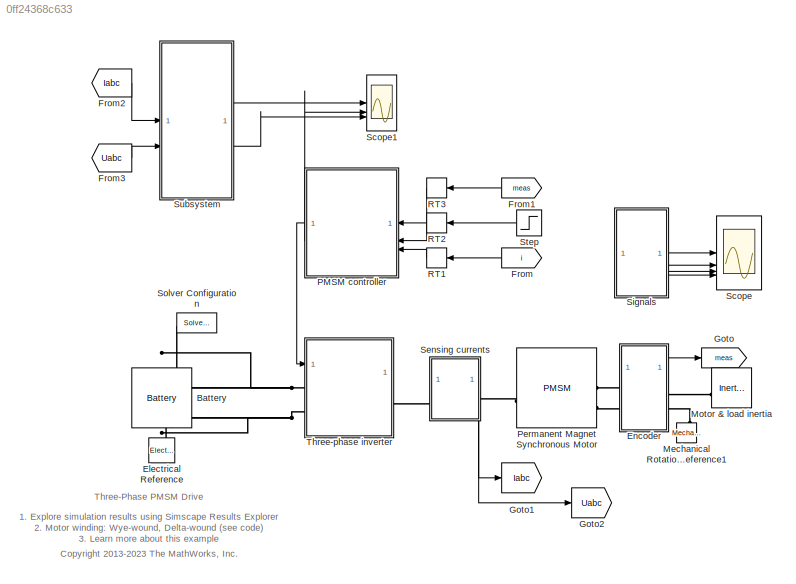
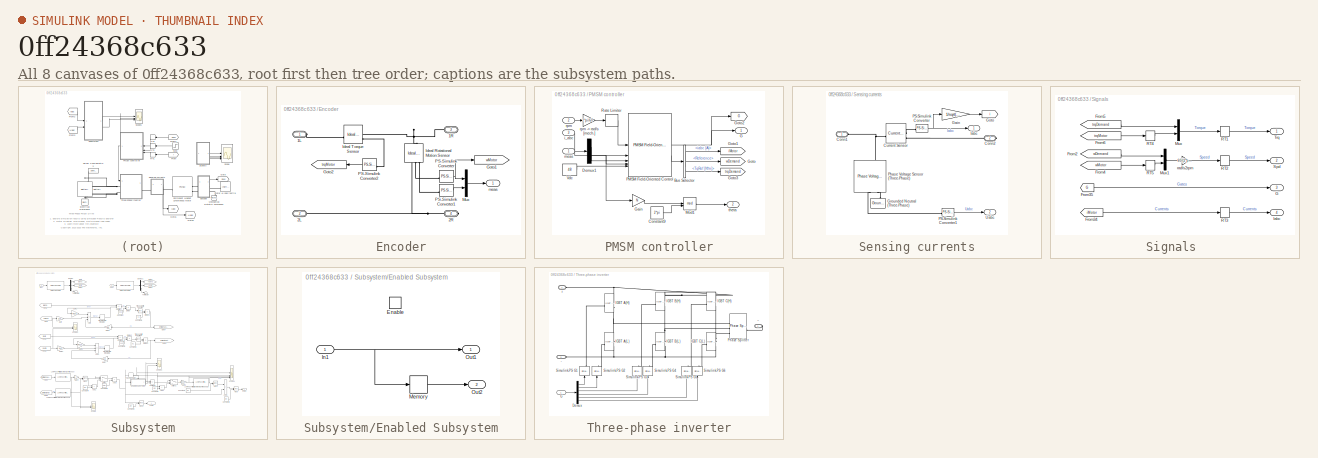
[diagram: thumbnail index - all 8 canvases of the model, root first then tree order]
MODEL slx_0ff24368c633
KIND model
CONFIG AbsTol = 1e-3
CONFIG EnableMultiTasking = on
CONFIG FixedStep = Ts
CONFIG MaxStep = auto
CONFIG MinStep = auto
CONFIG PreLoadFcn = % Control parameters\nTs = 2e-6;   % Fundamental sample time\nfsw = 2e3;   % Switching frequency (Hz)\nfc = fsw*10; % Control loop frequency (Hz)\nTsc = 1/fc;  % Control loop sample time\n\n% PMSM parameters \nPM = 0.03; % Permanent magnet flux linkage\nLd = 2e-4;  % d-axis inductance\nLq = 2e-4;  % q-axis inductance\nL0 = 2e-4;  % 0-axis inductance\nRs = 0.013; % Stator resistance\nN = 6; % Number of pole pa...<+387ch>
CONFIG RelTol = 1e-3
CONFIG SampleTimeConstraint = Unconstrained
CONFIG SolverName = FixedStepAuto
CONFIG StartTime = 0.0
CONFIG StopTime = 1
BLOCK [Reference] Battery  REF=batteryecm_lib/Battery
  NameLocation = right
  SourceBlock = batteryecm_lib/Battery
  SourceType = Battery
BLOCK [Reference] Electrical Reference  REF=fl_lib/Electrical/Electrical Elements/Electrical Reference
  NameLocation = right
  SourceBlock = fl_lib/Electrical/Electrical Elements/Electrical Reference
  SourceType = Electrical Reference
BLOCK [SubSystem] Encoder
BLOCK [PMIOPort] Encoder/1L
  Side = Left
BLOCK [PMIOPort] Encoder/1R
  Port = 3
  Side = Right
BLOCK [PMIOPort] Encoder/2L
  Port = 2
  Side = Left
BLOCK [PMIOPort] Encoder/2R
  Port = 4
  Side = Right
BLOCK [Goto] Encoder/Goto1
  GotoTag = wMotor
  NameLocation = top
  TagVisibility = global
BLOCK [Goto] Encoder/Goto2
  GotoTag = trqMotor
  TagVisibility = global
BLOCK [Reference] Encoder/Ideal Rotational Motion Sensor  REF=fl_lib/Mechanical/Mechanical Sensors/Ideal Rotational
Motion Sensor
  NameLocation = right
  SourceBlock = fl_lib/Mechanical/Mechanical Sensors/Ideal Rotational\nMotion Sensor
  SourceType = Ideal Rotational\nMotion Sensor
BLOCK [Reference] Encoder/Ideal Torque Sensor  REF=fl_lib/Mechanical/Mechanical Sensors/Ideal Torque Sensor
  SourceBlock = fl_lib/Mechanical/Mechanical Sensors/Ideal Torque Sensor
  SourceType = Ideal Torque Sensor
BLOCK [Mux] Encoder/Mux
  DisplayOption = bar
  Inputs = 2
BLOCK [Reference] Encoder/PS-Simulink Converter  REF=nesl_utility/PS-Simulink
Converter
  SourceBlock = nesl_utility/PS-Simulink\nConverter
  SourceType = PS-Simulink\nConverter
BLOCK [Reference] Encoder/PS-Simulink Converter1  REF=nesl_utility/PS-Simulink
Converter
  SourceBlock = nesl_utility/PS-Simulink\nConverter
  SourceType = PS-Simulink\nConverter
BLOCK [Reference] Encoder/PS-Simulink Converter2  REF=nesl_utility/PS-Simulink
Converter
  NameLocation = top
  SourceBlock = nesl_utility/PS-Simulink\nConverter
  SourceType = PS-Simulink\nConverter
BLOCK [Outport] Encoder/meas
  VectorParamsAs1DForOutWhenUnconnected = off
BLOCK [From] From
  GotoTag = i
  TagVisibility = global
BLOCK [From] From1
  GotoTag = meas
  TagVisibility = global
BLOCK [From] From2
  GotoTag = Iabc
BLOCK [From] From3
  GotoTag = Uabc
BLOCK [Goto] Goto
  GotoTag = meas
  TagVisibility = global
BLOCK [Goto] Goto1
  GotoTag = Iabc
BLOCK [Goto] Goto2
  GotoTag = Uabc
BLOCK [Reference] Mechanical Rotational Reference1  REF=fl_lib/Mechanical/Rotational Elements/Mechanical
Rotational Reference
  NameLocation = right
  SourceBlock = fl_lib/Mechanical/Rotational Elements/Mechanical\nRotational Reference
  SourceType = Mechanical\nRotational Reference
BLOCK [Reference] Motor & load inertia  REF=fl_lib/Mechanical/Rotational Elements/Inertia
  SourceBlock = fl_lib/Mechanical/Rotational Elements/Inertia
  SourceType = Inertia
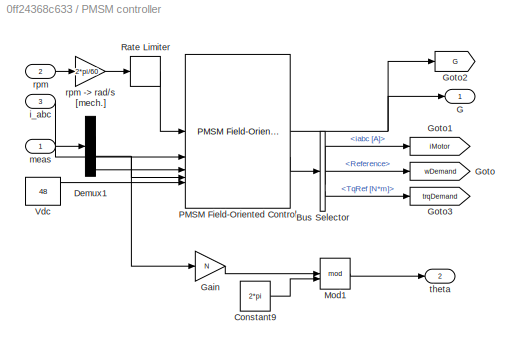
BLOCK [SubSystem] PMSM controller
BLOCK [BusSelector] PMSM controller/Bus Selector
  OutputSignals = iabc [A],Reference,TqRef [N*m]
BLOCK [Constant] PMSM controller/Constant9
  Value = 2*pi
BLOCK [Demux] PMSM controller/Demux1
  Outputs = 2
BLOCK [Outport] PMSM controller/G
  VectorParamsAs1DForOutWhenUnconnected = off
BLOCK [Gain] PMSM controller/Gain
  Gain = N
BLOCK [Goto] PMSM controller/Goto
  GotoTag = wDemand
  NameLocation = top
  TagVisibility = global
BLOCK [Goto] PMSM controller/Goto1
  GotoTag = iMotor
  NameLocation = top
  TagVisibility = global
BLOCK [Goto] PMSM controller/Goto2
  GotoTag = G
  TagVisibility = global
BLOCK [Goto] PMSM controller/Goto3
  GotoTag = trqDemand
  NameLocation = top
  TagVisibility = global
BLOCK [Math] PMSM controller/Mod1
  Operator = mod
BLOCK [Reference] PMSM controller/PMSM Field-Oriented Control  REF=eePmsmFieldOrientedControl/PMSM Field-Oriented
Control
  SourceBlock = eePmsmFieldOrientedControl/PMSM Field-Oriented\nControl
  SourceType = PMSM Field-Oriented Control
BLOCK [RateLimiter] PMSM controller/Rate Limiter
  FallingSlewLimit = -Tmax/J
  NameLocation = top
  RisingSlewLimit = Tmax/J
  SampleTimeMode = inherited
BLOCK [Constant] PMSM controller/Vdc
  SampleTime = Tsc
  Value = 48
BLOCK [Inport] PMSM controller/i_abc
  Port = 3
BLOCK [Inport] PMSM controller/meas
BLOCK [Inport] PMSM controller/rpm
  Port = 2
BLOCK [Gain] PMSM controller/rpm -> rad//s [mech.]
  Gain = 2*pi/60
  NameLocation = top
BLOCK [Outport] PMSM controller/theta
  Port = 2
  VectorParamsAs1DForOutWhenUnconnected = off
BLOCK [Reference] Permanent Magnet Synchronous Motor  REF=ee_lib/Electromechanical/Permanent Magnet/PMSM
  SourceBlock = ee_lib/Electromechanical/Permanent Magnet/PMSM
  SourceType = PMSM
BLOCK [RateTransition] RT1
  OutPortSampleTime = Tsc
BLOCK [RateTransition] RT2
  OutPortSampleTime = Tsc
BLOCK [RateTransition] RT3
  OutPortSampleTime = Tsc
BLOCK [Scope] Scope
  Floating = off
  NumInputPorts = 4
  ScopeSpecificationString = Simulink.scopes.TimeScopeBlockCfg('CurrentConfiguration', extmgr.ConfigurationSet(extmgr.Configuration('Core','General UI',true),extmgr.Configuration('Core','Source UI',true),extmgr.Configuration('Sources','WiredSimulink',true),extmgr.Configuration('Visuals','Time Domain',true,'SerializedDisplays',{struct('MinYLimReal','-4.67392','MaxYLimReal','37.28798','YLabelReal','','MinYLimMag','0.00000','Max...<+3988ch>
BLOCK [Scope] Scope1
  Floating = off
  NumInputPorts = 3
  ScopeSpecificationString = Simulink.scopes.TimeScopeBlockCfg('CurrentConfiguration', extmgr.ConfigurationSet(extmgr.Configuration('Core','General UI',true),extmgr.Configuration('Core','Source UI',true),extmgr.Configuration('Sources','WiredSimulink',true,'DataLoggingVariableName','ScopeData1'),extmgr.Configuration('Visuals','Time Domain',true,'SerializedDisplays',{struct('MinYLimReal','-0.7854','MaxYLimReal','7.06858','YLabe...<+1704ch>
BLOCK [SubSystem] Sensing currents
  PortSchema = {"entries":[{"content":{"sides":[{"content":{"connectorIds":["LConn1"]},"type":"ConnectorPlacement.EquallySpacedRectSide","uuid":"aa9d4f57-d480-4f23-a03e-aff27c78cb04"},{"content":{"connectorIds":["RConn1"],"side":"RIGHT"},"type":"ConnectorPlacement.EquallySpacedRectSide","uuid":"467c90f0-1554-4a75-86a4-c985cf5425a8"},{"content":{"side":"TOP"},"type":"ConnectorPlacement.EquallySpacedRectSide","uui...<+384ch>
BLOCK [PMIOPort] Sensing currents/Conn1
  Side = Left
BLOCK [PMIOPort] Sensing currents/Conn2
  Port = 2
  Side = Right
BLOCK [Reference] Sensing currents/Current Sensor  REF=ee_lib/Sensors &
Transducers/Current Sensor
(Three-Phase)
  SourceBlock = ee_lib/Sensors &\nTransducers/Current Sensor\n(Three-Phase)
  SourceType = Current Sensor\n(Three-Phase)
BLOCK [Gain] Sensing currents/Gain
  Commented = through
  Gain = 1/sqrt(3)
BLOCK [Goto] Sensing currents/Goto
  GotoTag = i
  TagVisibility = global
BLOCK [Reference] Sensing currents/Grounded Neutral (Three-Phase)  REF=ee_lib/Connectors &
References/Grounded Neutral
(Three-Phase)
  NameLocation = right
  SourceBlock = ee_lib/Connectors &\nReferences/Grounded Neutral\n(Three-Phase)
  SourceType = Grounded Neutral\n(Three-Phase)
BLOCK [Outport] Sensing currents/Iabc
BLOCK [Reference] Sensing currents/PS-Simulink Converter  REF=nesl_utility/PS-Simulink
Converter
  SourceBlock = nesl_utility/PS-Simulink\nConverter
  SourceType = PS-Simulink\nConverter
BLOCK [Reference] Sensing currents/PS-Simulink Converter1  REF=nesl_utility/PS-Simulink
Converter
  SourceBlock = nesl_utility/PS-Simulink\nConverter
  SourceType = PS-Simulink\nConverter
BLOCK [Reference] Sensing currents/Phase Voltage Sensor (Three-Phase)  REF=ee_lib/Sensors &
Transducers/Phase Voltage Sensor
(Three-Phase)
  NameLocation = right
  SourceBlock = ee_lib/Sensors &\nTransducers/Phase Voltage Sensor\n(Three-Phase)
  SourceType = Phase Voltage Sensor\n(Three-Phase)
BLOCK [Outport] Sensing currents/Uabc
  Port = 2
BLOCK [SubSystem] Signals 
BLOCK [From] Signals /From2
  GotoTag = wDemand
  TagVisibility = global
BLOCK [From] Signals /From34
  GotoTag = iMotor
  TagVisibility = global
BLOCK [From] Signals /From35
  GotoTag = G
  TagVisibility = global
BLOCK [From] Signals /From4
  GotoTag = wMotor
  TagVisibility = global
BLOCK [From] Signals /From5
  GotoTag = trqDemand
  TagVisibility = global
BLOCK [From] Signals /From6
  GotoTag = trqMotor
  TagVisibility = global
BLOCK [Outport] Signals /G
  Port = 3
  VectorParamsAs1DForOutWhenUnconnected = off
BLOCK [Outport] Signals /Iabc
  Port = 4
  VectorParamsAs1DForOutWhenUnconnected = off
BLOCK [Mux] Signals /Mux
  DisplayOption = bar
  Inputs = 2
BLOCK [Mux] Signals /Mux1
  DisplayOption = bar
  Inputs = 2
BLOCK [RateTransition] Signals /RT1
  OutPortSampleTime = Ts
BLOCK [RateTransition] Signals /RT2
  OutPortSampleTime = Ts
BLOCK [RateTransition] Signals /RT3
  OutPortSampleTime = Ts
BLOCK [RateTransition] Signals /RT4
  OutPortSampleTime = Tsc
BLOCK [RateTransition] Signals /RT5
  OutPortSampleTime = Tsc
BLOCK [Outport] Signals /Spd
  Port = 2
  VectorParamsAs1DForOutWhenUnconnected = off
BLOCK [Outport] Signals /Trq
  VectorParamsAs1DForOutWhenUnconnected = off
BLOCK [Gain] Signals /rad//s2rpm
  Gain = 60/(2*pi)
BLOCK [Reference] Solver Configuration  REF=nesl_utility/Solver
Configuration
  SourceBlock = nesl_utility/Solver\nConfiguration
  SourceType = Solver\nConfiguration
BLOCK [Step] Step
  After = 800
  SampleTime = 0
  Time = 0.05
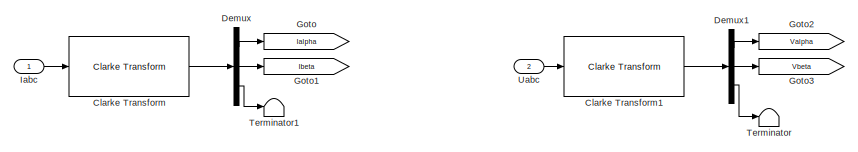
[diagram: Subsystem - part 1/2, top left region]
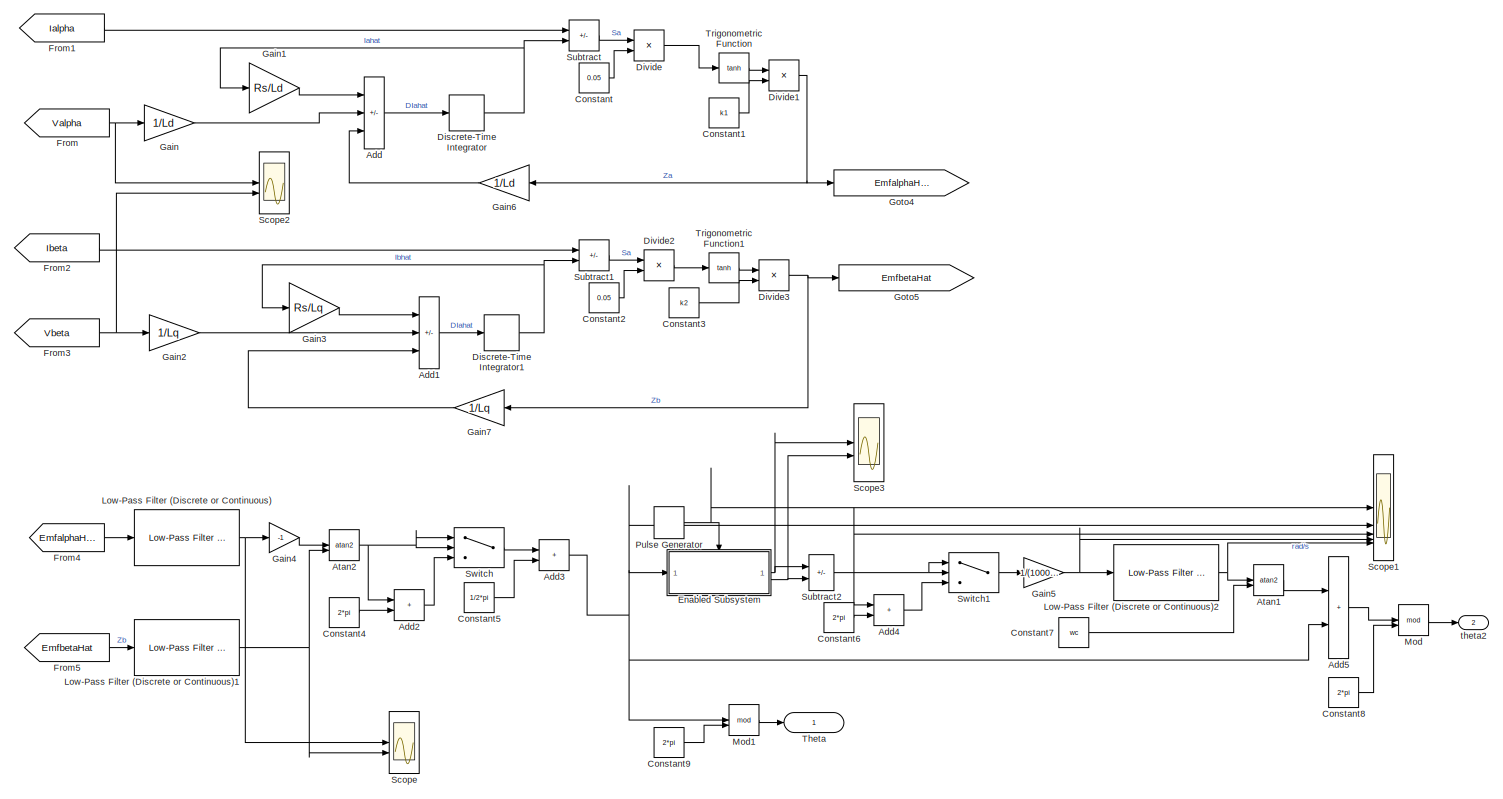
[diagram: Subsystem - part 2/2, most of the canvas]
BLOCK [SubSystem] Subsystem
BLOCK [Sum] Subsystem/Add
  IconShape = rectangular
  Inputs = -+-
BLOCK [Sum] Subsystem/Add1
  IconShape = rectangular
  Inputs = -+-
BLOCK [Sum] Subsystem/Add2
  IconShape = rectangular
BLOCK [Sum] Subsystem/Add3
  IconShape = rectangular
BLOCK [Sum] Subsystem/Add4
  IconShape = rectangular
BLOCK [Sum] Subsystem/Add5
  IconShape = rectangular
BLOCK [Trigonometry] Subsystem/Atan1
  Operator = atan2
BLOCK [Trigonometry] Subsystem/Atan2
  Operator = atan2
BLOCK [Reference] Subsystem/Clarke Transform  REF=mcbcontrolslib/Clarke Transform
  LibrarySourceBlock = mcbhdllib/Controls/Math Transforms/Clarke Transform
  SourceBlock = mcbcontrolslib/Clarke Transform
  SourceType = Clarke Transform
BLOCK [Reference] Subsystem/Clarke Transform1  REF=mcbcontrolslib/Clarke Transform
  LibrarySourceBlock = mcbhdllib/Controls/Math Transforms/Clarke Transform
  SourceBlock = mcbcontrolslib/Clarke Transform
  SourceType = Clarke Transform
BLOCK [Constant] Subsystem/Constant
  Value = 0.05
BLOCK [Constant] Subsystem/Constant1
  Value = k1
BLOCK [Constant] Subsystem/Constant2
  Value = 0.05
BLOCK [Constant] Subsystem/Constant3
  Value = k2
BLOCK [Constant] Subsystem/Constant4
  Value = 2*pi
BLOCK [Constant] Subsystem/Constant5
  Value = 1/2*pi
BLOCK [Constant] Subsystem/Constant6
  Value = 2*pi
BLOCK [Constant] Subsystem/Constant7
  Value = wc
BLOCK [Constant] Subsystem/Constant8
  Value = 2*pi
BLOCK [Constant] Subsystem/Constant9
  Value = 2*pi
BLOCK [Demux] Subsystem/Demux
  Outputs = 3
BLOCK [Demux] Subsystem/Demux1
  Outputs = 3
BLOCK [DiscreteIntegrator] Subsystem/Discrete-Time Integrator
  ICPrevOutput = DiscIntNeverNeededParam
  ICPrevScaledInput = DiscIntNeverNeededParam
  InitialConditionSetting = Auto
  SampleTime = Ts
BLOCK [DiscreteIntegrator] Subsystem/Discrete-Time Integrator1
  ICPrevOutput = DiscIntNeverNeededParam
  ICPrevScaledInput = DiscIntNeverNeededParam
  InitialConditionSetting = Auto
  SampleTime = Ts
BLOCK [Product] Subsystem/Divide
  Inputs = */
BLOCK [Product] Subsystem/Divide1
  Inputs = **
BLOCK [Product] Subsystem/Divide2
  Inputs = */
BLOCK [Product] Subsystem/Divide3
  Inputs = **
BLOCK [SubSystem] Subsystem/Enabled Subsystem
  TreatAsAtomicUnit = on
BLOCK [EnablePort] Subsystem/Enabled Subsystem/Enable
BLOCK [Inport] Subsystem/Enabled Subsystem/In1
BLOCK [Memory] Subsystem/Enabled Subsystem/Memory
BLOCK [Outport] Subsystem/Enabled Subsystem/Out1
BLOCK [Outport] Subsystem/Enabled Subsystem/Out2
  Port = 2
BLOCK [From] Subsystem/From
  GotoTag = Valpha
BLOCK [From] Subsystem/From1
  GotoTag = Ialpha
BLOCK [From] Subsystem/From2
  GotoTag = Ibeta
BLOCK [From] Subsystem/From3
  GotoTag = Vbeta
BLOCK [From] Subsystem/From4
  GotoTag = EmfalphaHat
BLOCK [From] Subsystem/From5
  GotoTag = EmfbetaHat
BLOCK [Gain] Subsystem/Gain
  Gain = 1/Ld
BLOCK [Gain] Subsystem/Gain1
  Gain = Rs/Ld
BLOCK [Gain] Subsystem/Gain2
  Gain = 1/Lq
BLOCK [Gain] Subsystem/Gain3
  Gain = Rs/Lq
BLOCK [Gain] Subsystem/Gain4
  Gain = -1
BLOCK [Gain] Subsystem/Gain5
  Gain = 1/(1000*Ts)
BLOCK [Gain] Subsystem/Gain6
  Gain = 1/Ld
BLOCK [Gain] Subsystem/Gain7
  Gain = 1/Lq
BLOCK [Goto] Subsystem/Goto
  GotoTag = Ialpha
BLOCK [Goto] Subsystem/Goto1
  GotoTag = Ibeta
BLOCK [Goto] Subsystem/Goto2
  GotoTag = Valpha
BLOCK [Goto] Subsystem/Goto3
  GotoTag = Vbeta
BLOCK [Goto] Subsystem/Goto4
  GotoTag = EmfalphaHat
BLOCK [Goto] Subsystem/Goto5
  GotoTag = EmfbetaHat
BLOCK [Inport] Subsystem/Iabc
BLOCK [Reference] Subsystem/Low-Pass Filter (Discrete or Continuous)  REF=eeGeneralControl/Low-Pass Filter
(Discrete or Continuous)
  LibrarySourceBlock = ee_sl_lib/General Control/Low-Pass Filter\n(Discrete or Continuous)
  SourceBlock = eeGeneralControl/Low-Pass Filter\n(Discrete or Continuous)
  SourceType = Low-Pass Filter (Discrete or Continuous)
BLOCK [Reference] Subsystem/Low-Pass Filter (Discrete or Continuous)1  REF=eeGeneralControl/Low-Pass Filter
(Discrete or Continuous)
  LibrarySourceBlock = ee_sl_lib/General Control/Low-Pass Filter\n(Discrete or Continuous)
  SourceBlock = eeGeneralControl/Low-Pass Filter\n(Discrete or Continuous)
  SourceType = Low-Pass Filter (Discrete or Continuous)
BLOCK [Reference] Subsystem/Low-Pass Filter (Discrete or Continuous)2  REF=eeGeneralControl/Low-Pass Filter
(Discrete or Continuous)
  LibrarySourceBlock = ee_sl_lib/General Control/Low-Pass Filter\n(Discrete or Continuous)
  SourceBlock = eeGeneralControl/Low-Pass Filter\n(Discrete or Continuous)
  SourceType = Low-Pass Filter (Discrete or Continuous)
BLOCK [Math] Subsystem/Mod
  Operator = mod
BLOCK [Math] Subsystem/Mod1
  Operator = mod
BLOCK [DiscretePulseGenerator] Subsystem/Pulse Generator
  Period = Ts*1000
  PulseType = Time based
  PulseWidth = 50
BLOCK [Scope] Subsystem/Scope
  Floating = off
  NumInputPorts = 2
  ScopeSpecificationString = Simulink.scopes.TimeScopeBlockCfg('CurrentConfiguration', extmgr.ConfigurationSet(extmgr.Configuration('Core','General UI',true),extmgr.Configuration('Core','Source UI',true),extmgr.Configuration('Sources','WiredSimulink',true,'DataLoggingVariableName','ScopeData1'),extmgr.Configuration('Visuals','Time Domain',true,'SerializedDisplays',{struct('MinYLimReal','-125.00000','MaxYLimReal','125.00000','...<+1619ch>
BLOCK [Scope] Subsystem/Scope1
  Floating = off
  NumInputPorts = 5
  ScopeSpecificationString = Simulink.scopes.TimeScopeBlockCfg('CurrentConfiguration', extmgr.ConfigurationSet(extmgr.Configuration('Core','General UI',true),extmgr.Configuration('Core','Source UI',true),extmgr.Configuration('Sources','WiredSimulink',true,'DataLoggingVariableName','ScopeData2'),extmgr.Configuration('Visuals','Time Domain',true,'SerializedDisplays',{struct('MinYLimReal','-0.125','MaxYLimReal','1.125','YLabelRe...<+4707ch>
BLOCK [Scope] Subsystem/Scope2
  Floating = off
  NumInputPorts = 2
  ScopeSpecificationString = Simulink.scopes.TimeScopeBlockCfg('CurrentConfiguration', extmgr.ConfigurationSet(extmgr.Configuration('Core','General UI',true),extmgr.Configuration('Core','Source UI',true),extmgr.Configuration('Sources','WiredSimulink',true,'DataLoggingVariableName','ScopeData3'),extmgr.Configuration('Visuals','Time Domain',true,'SerializedDisplays',{struct('MinYLimReal','-132.43373','MaxYLimReal','143.25164','...<+1535ch>
BLOCK [Scope] Subsystem/Scope3
  Floating = off
  NumInputPorts = 2
  ScopeSpecificationString = Simulink.scopes.TimeScopeBlockCfg('CurrentConfiguration', extmgr.ConfigurationSet(extmgr.Configuration('Core','General UI',true),extmgr.Configuration('Core','Source UI',true),extmgr.Configuration('Sources','WiredSimulink',true,'DataLoggingVariableName','ScopeData4'),extmgr.Configuration('Visuals','Time Domain',true,'SerializedDisplays',{struct('MinYLimReal','0.61755','MaxYLimReal','8.63742','YLabe...<+1675ch>
BLOCK [Sum] Subsystem/Subtract
  IconShape = rectangular
  Inputs = -+
BLOCK [Sum] Subsystem/Subtract1
  IconShape = rectangular
  Inputs = -+
BLOCK [Sum] Subsystem/Subtract2
  IconShape = rectangular
  Inputs = +-
BLOCK [Switch] Subsystem/Switch
  Criteria = u2 > Threshold
  InputSameDT = off
  SaturateOnIntegerOverflow = off
BLOCK [Switch] Subsystem/Switch1
  Criteria = u2 > Threshold
  InputSameDT = off
  SaturateOnIntegerOverflow = off
BLOCK [Terminator] Subsystem/Terminator
BLOCK [Terminator] Subsystem/Terminator1
BLOCK [Outport] Subsystem/Theta
BLOCK [Trigonometry] Subsystem/Trigonometric Function
  Operator = tanh
BLOCK [Trigonometry] Subsystem/Trigonometric Function1
  Operator = tanh
BLOCK [Inport] Subsystem/Uabc
  Port = 2
BLOCK [Outport] Subsystem/theta2
  Port = 2
BLOCK [SubSystem] Three-phase inverter
BLOCK [PMIOPort] Three-phase inverter/+
  Port = 2
  Side = Left
  Tag = PMCPort
BLOCK [PMIOPort] Three-phase inverter/-
  Port = 3
  Side = Left
  Tag = PMCPort
BLOCK [Demux] Three-phase inverter/Demux
  Outputs = 6
BLOCK [Inport] Three-phase inverter/G
BLOCK [Reference] Three-phase inverter/IGBT A(H)  REF=ee_lib/Semiconductors &
Converters/IGBT
(Ideal,
Switching)
  SourceBlock = ee_lib/Semiconductors &\nConverters/IGBT\n(Ideal,\nSwitching)
  SourceType = IGBT\n(Ideal,\nSwitching)
BLOCK [Reference] Three-phase inverter/IGBT A(L)  REF=ee_lib/Semiconductors &
Converters/IGBT
(Ideal,
Switching)
  SourceBlock = ee_lib/Semiconductors &\nConverters/IGBT\n(Ideal,\nSwitching)
  SourceType = IGBT\n(Ideal,\nSwitching)
BLOCK [Reference] Three-phase inverter/IGBT B(H)  REF=ee_lib/Semiconductors &
Converters/IGBT
(Ideal,
Switching)
  SourceBlock = ee_lib/Semiconductors &\nConverters/IGBT\n(Ideal,\nSwitching)
  SourceType = IGBT\n(Ideal,\nSwitching)
BLOCK [Reference] Three-phase inverter/IGBT B(L)  REF=ee_lib/Semiconductors &
Converters/IGBT
(Ideal,
Switching)
  SourceBlock = ee_lib/Semiconductors &\nConverters/IGBT\n(Ideal,\nSwitching)
  SourceType = IGBT\n(Ideal,\nSwitching)
BLOCK [Reference] Three-phase inverter/IGBT C(H)  REF=ee_lib/Semiconductors &
Converters/IGBT
(Ideal,
Switching)
  SourceBlock = ee_lib/Semiconductors &\nConverters/IGBT\n(Ideal,\nSwitching)
  SourceType = IGBT\n(Ideal,\nSwitching)
BLOCK [Reference] Three-phase inverter/IGBT C(L)  REF=ee_lib/Semiconductors &
Converters/IGBT
(Ideal,
Switching)
  SourceBlock = ee_lib/Semiconductors &\nConverters/IGBT\n(Ideal,\nSwitching)
  SourceType = IGBT\n(Ideal,\nSwitching)
BLOCK [Reference] Three-phase inverter/Phase Splitter  REF=ee_lib/Connectors &
References/Phase Splitter
  SourceBlock = ee_lib/Connectors &\nReferences/Phase Splitter
  SourceType = Phase Splitter
BLOCK [Reference] Three-phase inverter/Simulink-PS G1  REF=nesl_utility/Simulink-PS
Converter
  NameLocation = right
  SourceBlock = nesl_utility/Simulink-PS\nConverter
  SourceType = Simulink-PS\nConverter
BLOCK [Reference] Three-phase inverter/Simulink-PS G2  REF=nesl_utility/Simulink-PS
Converter
  NameLocation = right
  SourceBlock = nesl_utility/Simulink-PS\nConverter
  SourceType = Simulink-PS\nConverter
BLOCK [Reference] Three-phase inverter/Simulink-PS G3  REF=nesl_utility/Simulink-PS
Converter
  NameLocation = left
  SourceBlock = nesl_utility/Simulink-PS\nConverter
  SourceType = Simulink-PS\nConverter
BLOCK [Reference] Three-phase inverter/Simulink-PS G4  REF=nesl_utility/Simulink-PS
Converter
  NameLocation = right
  SourceBlock = nesl_utility/Simulink-PS\nConverter
  SourceType = Simulink-PS\nConverter
BLOCK [Reference] Three-phase inverter/Simulink-PS G5  REF=nesl_utility/Simulink-PS
Converter
  NameLocation = right
  SourceBlock = nesl_utility/Simulink-PS\nConverter
  SourceType = Simulink-PS\nConverter
BLOCK [Reference] Three-phase inverter/Simulink-PS G6  REF=nesl_utility/Simulink-PS
Converter
  NameLocation = right
  SourceBlock = nesl_utility/Simulink-PS\nConverter
  SourceType = Simulink-PS\nConverter
BLOCK [PMIOPort] Three-phase inverter/~
  Side = Right
  Tag = PMCPort
ANNOTATION (root): 1. Explore simulation results using Simscape Results Explorer 2. Motor winding: Wye-wound , Delta-wound ( see code ) 3. Learn more about this example
ANNOTATION (root): <copyright redacted>
ANNOTATION (root): Three-Phase PMSM Drive
LINE Encoder/Mux:1 -> Encoder/meas:1
LINE Encoder/PS-Simulink Converter1:1 -> Encoder/Mux:2
LINE Encoder/PS-Simulink Converter2:1 -> Encoder/Goto2:1
NET Encoder/PS-Simulink Converter:1 -> Encoder/Goto1:1, Encoder/Mux:1
LINE Encoder:1 -> Goto:1
LINE From1:1 -> RT3:1
LINE From2:1 -> Subsystem:1
LINE From3:1 -> Subsystem:2
LINE From:1 -> RT1:1
LINE PMSM controller/Bus Selector:1 -> PMSM controller/Goto1:1
LINE PMSM controller/Bus Selector:2 -> PMSM controller/Goto:1
LINE PMSM controller/Bus Selector:3 -> PMSM controller/Goto3:1
LINE PMSM controller/Constant9:1 -> PMSM controller/Mod1:2
LINE PMSM controller/Demux1:1 -> PMSM controller/PMSM Field-Oriented Control:3
NET PMSM controller/Demux1:2 -> PMSM controller/Gain:1, PMSM controller/PMSM Field-Oriented Control:4
LINE PMSM controller/Gain:1 -> PMSM controller/Mod1:1
LINE PMSM controller/Mod1:1 -> PMSM controller/theta:1
NET PMSM controller/PMSM Field-Oriented Control:1 -> PMSM controller/G:1, PMSM controller/Goto2:1
LINE PMSM controller/PMSM Field-Oriented Control:2 -> PMSM controller/Bus Selector:1
LINE PMSM controller/Rate Limiter:1 -> PMSM controller/PMSM Field-Oriented Control:1
LINE PMSM controller/Vdc:1 -> PMSM controller/PMSM Field-Oriented Control:5
LINE PMSM controller/i_abc:1 -> PMSM controller/PMSM Field-Oriented Control:2
LINE PMSM controller/meas:1 -> PMSM controller/Demux1:1
LINE PMSM controller/rpm -> rad//s [mech.]:1 -> PMSM controller/Rate Limiter:1
LINE PMSM controller/rpm:1 -> PMSM controller/rpm -> rad//s [mech.]:1
LINE PMSM controller:1 -> Three-phase inverter:1
LINE PMSM controller:2 -> Scope1:2
LINE RT1:1 -> PMSM controller:3
LINE RT2:1 -> PMSM controller:2
LINE RT3:1 -> PMSM controller:1
LINE Sensing currents/Gain:1 -> Sensing currents/Goto:1
LINE Sensing currents/PS-Simulink Converter1:1 -> Sensing currents/Uabc:1
NET Sensing currents/PS-Simulink Converter:1 -> Sensing currents/Gain:1, Sensing currents/Iabc:1
LINE Sensing currents:1 -> Goto2:1
LINE Sensing currents:2 -> Goto1:1
LINE Signals /From2:1 -> Signals /Mux1:1
LINE Signals /From34:1 -> Signals /RT3:1
LINE Signals /From35:1 -> Signals /G:1
LINE Signals /From4:1 -> Signals /RT5:1
LINE Signals /From5:1 -> Signals /Mux:1
LINE Signals /From6:1 -> Signals /RT4:1
LINE Signals /Mux1:1 -> Signals /rad//s2rpm:1
LINE Signals /Mux:1 -> Signals /RT1:1
LINE Signals /RT1:1 -> Signals /Trq:1
LINE Signals /RT2:1 -> Signals /Spd:1
LINE Signals /RT3:1 -> Signals /Iabc:1
LINE Signals /RT4:1 -> Signals /Mux:2
LINE Signals /RT5:1 -> Signals /Mux1:2
LINE Signals /rad//s2rpm:1 -> Signals /RT2:1
LINE Signals :1 -> Scope:1
LINE Signals :2 -> Scope:2
LINE Signals :3 -> Scope:3
LINE Signals :4 -> Scope:4
LINE Step:1 -> RT2:1
LINE Subsystem/Add1:1 -> Subsystem/Discrete-Time Integrator1:1
LINE Subsystem/Add2:1 -> Subsystem/Switch:3
NET Subsystem/Add3:1 -> Subsystem/Add5:2, Subsystem/Enabled Subsystem:1, Subsystem/Mod1:1, Subsystem/Scope1:2
LINE Subsystem/Add4:1 -> Subsystem/Switch1:3
LINE Subsystem/Add5:1 -> Subsystem/Mod:1
LINE Subsystem/Add:1 -> Subsystem/Discrete-Time Integrator:1
LINE Subsystem/Atan1:1 -> Subsystem/Add5:1
NET Subsystem/Atan2:1 -> Subsystem/Add2:1, Subsystem/Switch:1, Subsystem/Switch:2
LINE Subsystem/Clarke Transform1:1 -> Subsystem/Demux1:1
LINE Subsystem/Clarke Transform:1 -> Subsystem/Demux:1
LINE Subsystem/Constant1:1 -> Subsystem/Divide1:2
LINE Subsystem/Constant2:1 -> Subsystem/Divide2:2
LINE Subsystem/Constant3:1 -> Subsystem/Divide3:2
LINE Subsystem/Constant4:1 -> Subsystem/Add2:2
LINE Subsystem/Constant5:1 -> Subsystem/Add3:2
LINE Subsystem/Constant6:1 -> Subsystem/Add4:2
LINE Subsystem/Constant7:1 -> Subsystem/Atan1:2
LINE Subsystem/Constant8:1 -> Subsystem/Mod:2
LINE Subsystem/Constant9:1 -> Subsystem/Mod1:2
LINE Subsystem/Constant:1 -> Subsystem/Divide:2
LINE Subsystem/Demux1:1 -> Subsystem/Goto2:1
LINE Subsystem/Demux1:2 -> Subsystem/Goto3:1
LINE Subsystem/Demux1:3 -> Subsystem/Terminator:1
LINE Subsystem/Demux:1 -> Subsystem/Goto:1
LINE Subsystem/Demux:2 -> Subsystem/Goto1:1
LINE Subsystem/Demux:3 -> Subsystem/Terminator1:1
NET Subsystem/Discrete-Time Integrator1:1 -> Subsystem/Gain3:1, Subsystem/Subtract1:2
NET Subsystem/Discrete-Time Integrator:1 -> Subsystem/Gain1:1, Subsystem/Subtract:2
NET Subsystem/Divide1:1 -> Subsystem/Gain6:1, Subsystem/Goto4:1
LINE Subsystem/Divide2:1 -> Subsystem/Trigonometric Function1:1
NET Subsystem/Divide3:1 -> Subsystem/Gain7:1, Subsystem/Goto5:1
LINE Subsystem/Divide:1 -> Subsystem/Trigonometric Function:1
NET Subsystem/Enabled Subsystem/In1:1 -> Subsystem/Enabled Subsystem/Memory:1, Subsystem/Enabled Subsystem/Out1:1
LINE Subsystem/Enabled Subsystem/Memory:1 -> Subsystem/Enabled Subsystem/Out2:1
NET Subsystem/Enabled Subsystem:1 -> Subsystem/Scope3:1, Subsystem/Subtract2:1
NET Subsystem/Enabled Subsystem:2 -> Subsystem/Scope3:2, Subsystem/Subtract2:2
LINE Subsystem/From1:1 -> Subsystem/Subtract:1
LINE Subsystem/From2:1 -> Subsystem/Subtract1:1
NET Subsystem/From3:1 -> Subsystem/Gain2:1, Subsystem/Scope2:2
LINE Subsystem/From4:1 -> Subsystem/Low-Pass Filter (Discrete or Continuous):1
LINE Subsystem/From5:1 -> Subsystem/Low-Pass Filter (Discrete or Continuous)1:1
NET Subsystem/From:1 -> Subsystem/Gain:1, Subsystem/Scope2:1
LINE Subsystem/Gain1:1 -> Subsystem/Add:1
LINE Subsystem/Gain2:1 -> Subsystem/Add1:2
LINE Subsystem/Gain3:1 -> Subsystem/Add1:1
LINE Subsystem/Gain4:1 -> Subsystem/Atan2:1
NET Subsystem/Gain5:1 -> Subsystem/Low-Pass Filter (Discrete or Continuous)2:1, Subsystem/Scope1:4
LINE Subsystem/Gain6:1 -> Subsystem/Add:3
LINE Subsystem/Gain7:1 -> Subsystem/Add1:3
LINE Subsystem/Gain:1 -> Subsystem/Add:2
LINE Subsystem/Iabc:1 -> Subsystem/Clarke Transform:1
NET Subsystem/Low-Pass Filter (Discrete or Continuous)1:1 -> Subsystem/Atan2:2, Subsystem/Scope:2
NET Subsystem/Low-Pass Filter (Discrete or Continuous)2:1 -> Subsystem/Atan1:1, Subsystem/Scope1:5
NET Subsystem/Low-Pass Filter (Discrete or Continuous):1 -> Subsystem/Gain4:1, Subsystem/Scope:1
LINE Subsystem/Mod1:1 -> Subsystem/Theta:1
LINE Subsystem/Mod:1 -> Subsystem/theta2:1
NET Subsystem/Pulse Generator:1 -> Subsystem/Enabled Subsystem:enable, Subsystem/Scope1:1
LINE Subsystem/Subtract1:1 -> Subsystem/Divide2:1
NET Subsystem/Subtract2:1 -> Subsystem/Add4:1, Subsystem/Scope1:3, Subsystem/Switch1:1, Subsystem/Switch1:2
LINE Subsystem/Subtract:1 -> Subsystem/Divide:1
LINE Subsystem/Switch1:1 -> Subsystem/Gain5:1
LINE Subsystem/Switch:1 -> Subsystem/Add3:1
LINE Subsystem/Trigonometric Function1:1 -> Subsystem/Divide3:1
LINE Subsystem/Trigonometric Function:1 -> Subsystem/Divide1:1
LINE Subsystem/Uabc:1 -> Subsystem/Clarke Transform1:1
LINE Subsystem:1 -> Scope1:1
LINE Subsystem:2 -> Scope1:3
LINE Three-phase inverter/Demux:1 -> Three-phase inverter/Simulink-PS G1:1
LINE Three-phase inverter/Demux:2 -> Three-phase inverter/Simulink-PS G2:1
LINE Three-phase inverter/Demux:3 -> Three-phase inverter/Simulink-PS G3:1
LINE Three-phase inverter/Demux:4 -> Three-phase inverter/Simulink-PS G4:1
LINE Three-phase inverter/Demux:5 -> Three-phase inverter/Simulink-PS G5:1
LINE Three-phase inverter/Demux:6 -> Three-phase inverter/Simulink-PS G6:1
LINE Three-phase inverter/G:1 -> Three-phase inverter/Demux:1
PNET net1: Battery:LConn1 -- Solver Configuration:RConn1 -- Three-phase inverter:LConn1
PNET net2: Battery:RConn1 -- Electrical Reference:LConn1 -- Three-phase inverter:LConn2
PLINE Encoder/1L:RConn1 -- Encoder/Ideal Torque Sensor:LConn1
PNET net3: Encoder/1R:RConn1 -- Encoder/Ideal Rotational Motion Sensor:LConn1 -- Encoder/Ideal Torque Sensor:RConn1
PNET net4: Encoder/2L:RConn1 -- Encoder/2R:RConn1 -- Encoder/Ideal Rotational Motion Sensor:RConn1
PLINE Encoder/Ideal Rotational Motion Sensor:RConn2 -- Encoder/PS-Simulink Converter:LConn1
PLINE Encoder/Ideal Rotational Motion Sensor:RConn3 -- Encoder/PS-Simulink Converter1:LConn1
PLINE Encoder/Ideal Torque Sensor:RConn2 -- Encoder/PS-Simulink Converter2:LConn1
PLINE Encoder:LConn1 -- Permanent Magnet Synchronous Motor:RConn1
PLINE Encoder:LConn2 -- Permanent Magnet Synchronous Motor:RConn2
PLINE Encoder:RConn1 -- Motor & load inertia:LConn1
PLINE Encoder:RConn2 -- Mechanical Rotational Reference1:LConn1
PLINE Permanent Magnet Synchronous Motor:LConn1 -- Sensing currents:RConn1
PNET net5: Sensing currents/Conn1:RConn1 -- Sensing currents/Current Sensor:LConn1 -- Sensing currents/Phase Voltage Sensor (Three-Phase):LConn1
PLINE Sensing currents/Conn2:RConn1 -- Sensing currents/Current Sensor:RConn2
PLINE Sensing currents/Current Sensor:RConn1 -- Sensing currents/PS-Simulink Converter:LConn1
PLINE Sensing currents/Grounded Neutral (Three-Phase):LConn1 -- Sensing currents/Phase Voltage Sensor (Three-Phase):RConn2
PLINE Sensing currents/PS-Simulink Converter1:LConn1 -- Sensing currents/Phase Voltage Sensor (Three-Phase):RConn1
PLINE Sensing currents:LConn1 -- Three-phase inverter:RConn1
PNET net6: Three-phase inverter/+:RConn1 -- Three-phase inverter/IGBT A(H):RConn1 -- Three-phase inverter/IGBT B(H):RConn1 -- Three-phase inverter/IGBT C(H):RConn1
PNET net7: Three-phase inverter/-:RConn1 -- Three-phase inverter/IGBT A(L):RConn2 -- Three-phase inverter/IGBT B(L):RConn2 -- Three-phase inverter/IGBT C(L):RConn2
PLINE Three-phase inverter/IGBT A(H):LConn1 -- Three-phase inverter/Simulink-PS G1:RConn1
PNET net8: Three-phase inverter/IGBT A(H):RConn2 -- Three-phase inverter/IGBT A(L):RConn1 -- Three-phase inverter/Phase Splitter:RConn1
PLINE Three-phase inverter/IGBT A(L):LConn1 -- Three-phase inverter/Simulink-PS G2:RConn1
PLINE Three-phase inverter/IGBT B(H):LConn1 -- Three-phase inverter/Simulink-PS G3:RConn1
PNET net9: Three-phase inverter/IGBT B(H):RConn2 -- Three-phase inverter/IGBT B(L):RConn1 -- Three-phase inverter/Phase Splitter:RConn2
PLINE Three-phase inverter/IGBT B(L):LConn1 -- Three-phase inverter/Simulink-PS G4:RConn1
PLINE Three-phase inverter/IGBT C(H):LConn1 -- Three-phase inverter/Simulink-PS G5:RConn1
PNET net10: Three-phase inverter/IGBT C(H):RConn2 -- Three-phase inverter/IGBT C(L):RConn1 -- Three-phase inverter/Phase Splitter:RConn3
PLINE Three-phase inverter/IGBT C(L):LConn1 -- Three-phase inverter/Simulink-PS G6:RConn1
PLINE Three-phase inverter/Phase Splitter:LConn1 -- Three-phase inverter/~:RConn1
note: NET lines group one-source signal fan-out (src -> all destinations, sorted); 1:1 wires keep LINE; PNET lines group multi-terminal physical nets as a canonical sorted terminal list (undirected conserving connections); 2-terminal nets keep the pairwise PLINE form
